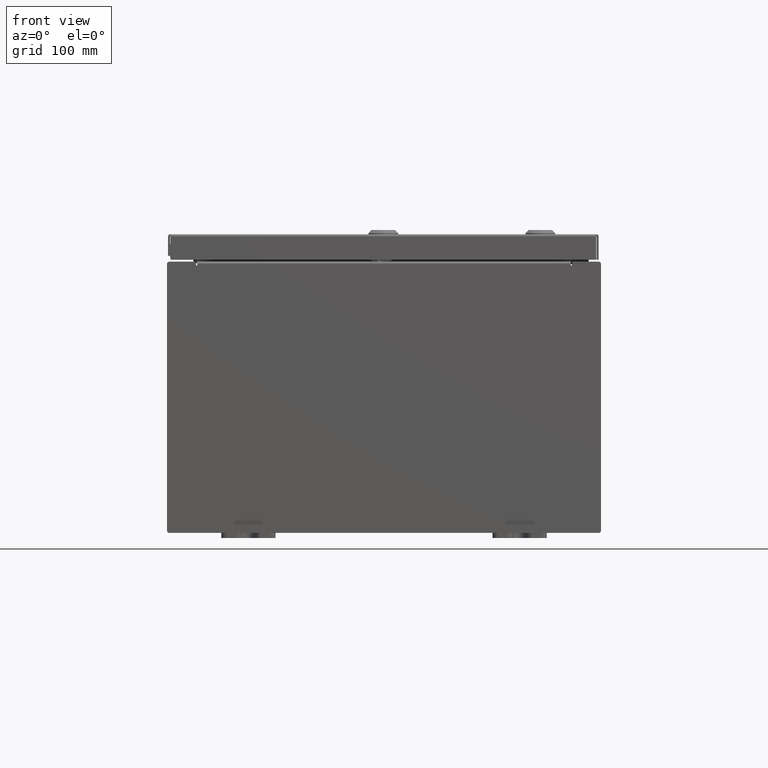
[diagram: clean part render]
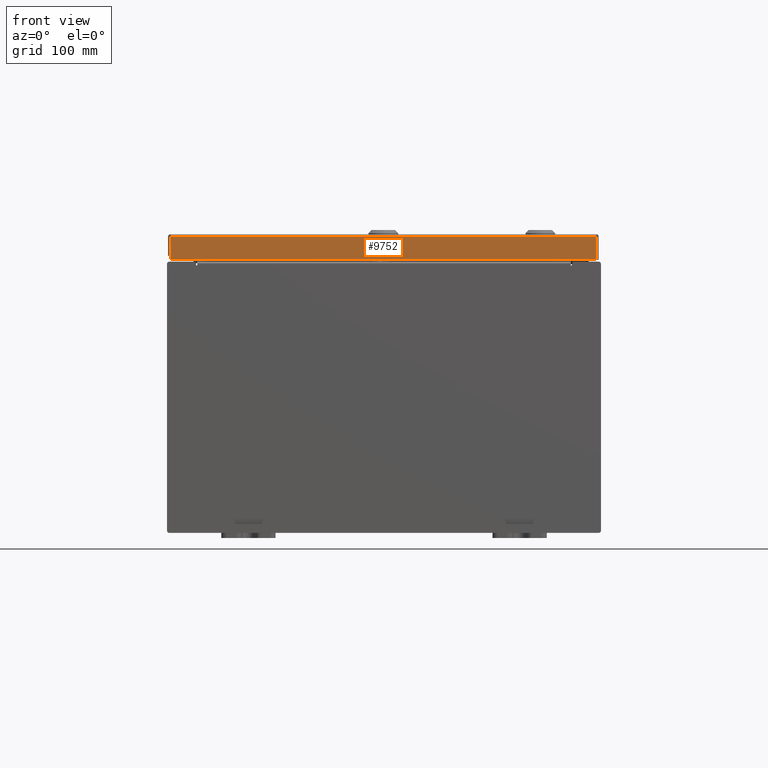
[diagram: same view with one face highlighted and labeled with its STEP entity id]
A machine part, front view. The second image highlights one B-rep face of the part: STEP entity #9752.
In plain terms, the highlighted planar face has unit normal (-0, 1, -0).
Its self-contained STEP definition (entity closure, byte-faithful):
#387 = DIRECTION ( 'NONE',  ( -0.0000000000000000000, -3.798629886902798700E-015, -1.000000000000000000 ) ) ;
#838 = PLANE ( 'NONE',  #7465 ) ;
#1959 = VECTOR ( 'NONE', #387, 39.37007874015748100 ) ;
#2154 = LINE ( 'NONE', #14475, #39167 ) ;
#4070 = ORIENTED_EDGE ( 'NONE', *, *, #41146, .F. ) ;
#7465 = AXIS2_PLACEMENT_3D ( 'NONE', #29753, #25678, #59451 ) ;
#8637 = VERTEX_POINT ( 'NONE', #12688 ) ;
#9752 = ADVANCED_FACE ( 'NONE', ( #35267 ), #838, .F. ) ;
#12688 = CARTESIAN_POINT ( 'NONE',  ( 7.848657864376269400, -7.937500000000000000, -0.08769999999999997200 ) ) ;
#13671 = VERTEX_POINT ( 'NONE', #62452 ) ;
#13766 = CARTESIAN_POINT ( 'NONE',  ( 7.937500000000000000, -7.937500000000003600, -0.9376999999999997600 ) ) ;
#14475 = CARTESIAN_POINT ( 'NONE',  ( -7.848657864376269400, -7.937500000000000000, 3.041243838330255000E-014 ) ) ;
#14593 = VERTEX_POINT ( 'NONE', #60585 ) ;
#15360 = EDGE_CURVE ( 'NONE', #13671, #14593, #2154, .T. ) ;
#16243 = ORIENTED_EDGE ( 'NONE', *, *, #39077, .F. ) ;
#16313 = LINE ( 'NONE', #13766, #42001 ) ;
#17479 = CARTESIAN_POINT ( 'NONE',  ( 7.937500000000000000, -7.937500000000000000, -0.08769999999999997200 ) ) ;
#17641 = ORIENTED_EDGE ( 'NONE', *, *, #15360, .T. ) ;
#18425 = DIRECTION ( 'NONE',  ( -1.000000000000000000, 8.758115402030108600E-047, 1.204594390907076900E-016 ) ) ;
#22329 = DIRECTION ( 'NONE',  ( 1.000000000000000000, 4.575808254895093900E-031, -1.755275756154839100E-045 ) ) ;
#24181 = DIRECTION ( 'NONE',  ( 0.0000000000000000000, -3.798629886902798700E-015, -1.000000000000000000 ) ) ;
#25678 = DIRECTION ( 'NONE',  ( -4.575808254895093900E-031, 1.000000000000000000, -3.798629886902798700E-015 ) ) ;
#29753 = CARTESIAN_POINT ( 'NONE',  ( 3.632047802322981100E-030, -7.937500000000000000, 3.041243838330255000E-014 ) ) ;
#30770 = LINE ( 'NONE', #17479, #54935 ) ;
#32795 = ORIENTED_EDGE ( 'NONE', *, *, #55475, .F. ) ;
#35267 = FACE_OUTER_BOUND ( 'NONE', #40340, .T. ) ;
#39077 = EDGE_CURVE ( 'NONE', #13671, #8637, #30770, .T. ) ;
#39167 = VECTOR ( 'NONE', #24181, 39.37007874015748100 ) ;
#40340 = EDGE_LOOP ( 'NONE', ( #16243, #17641, #32795, #4070 ) ) ;
#40451 = LINE ( 'NONE', #57560, #1959 ) ;
#41146 = EDGE_CURVE ( 'NONE', #8637, #43809, #40451, .T. ) ;
#42001 = VECTOR ( 'NONE', #18425, 39.37007874015748100 ) ;
#43809 = VERTEX_POINT ( 'NONE', #51677 ) ;
#51677 = CARTESIAN_POINT ( 'NONE',  ( 7.848657864376269400, -7.937500000000003600, -0.9376999999999997600 ) ) ;
#54935 = VECTOR ( 'NONE', #22329, 39.37007874015748100 ) ;
#55475 = EDGE_CURVE ( 'NONE', #43809, #14593, #16313, .T. ) ;
#57560 = CARTESIAN_POINT ( 'NONE',  ( 7.848657864376269400, -7.937500000000000000, -0.07469999999999972500 ) ) ;
#59451 = DIRECTION ( 'NONE',  ( 0.0000000000000000000, 3.798629886902798700E-015, 1.000000000000000000 ) ) ;
#60585 = CARTESIAN_POINT ( 'NONE',  ( -7.848657864376269400, -7.937500000000003600, -0.9376999999999977600 ) ) ;
#62452 = CARTESIAN_POINT ( 'NONE',  ( -7.848657864376269400, -7.937500000000000000, -0.08769999999999997200 ) ) ;